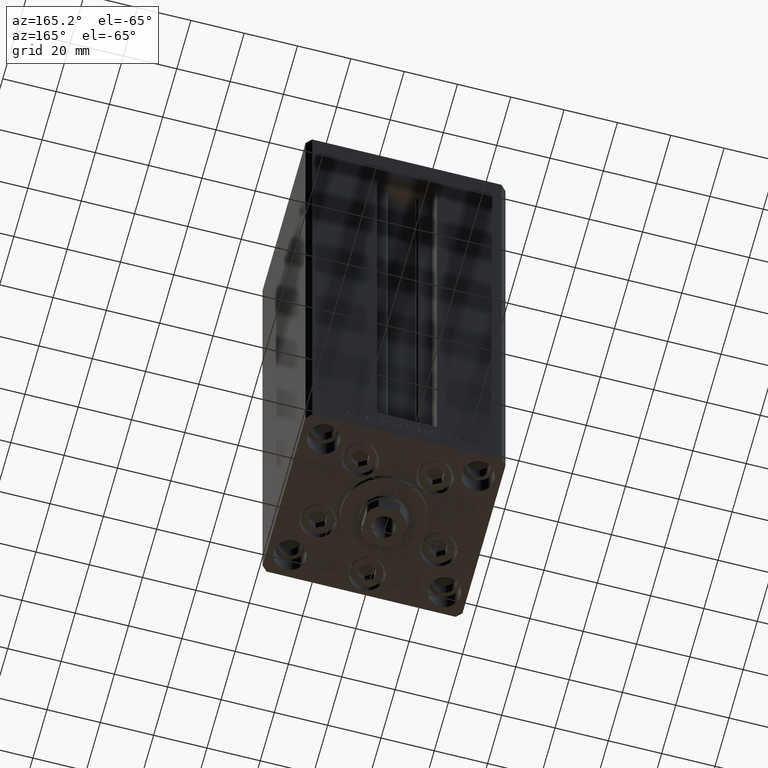
[diagram: clean part render]
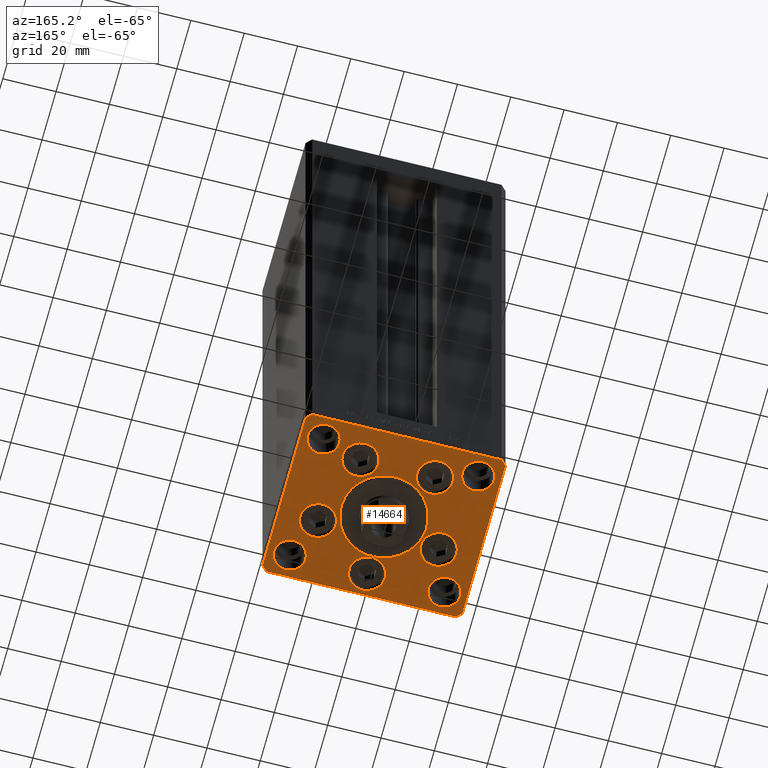
[diagram: same view with one face highlighted and labeled with its STEP entity id]
A machine part, auxiliary view. The second image highlights one B-rep face of the part: STEP entity #14664.
In plain terms, the highlighted planar face has unit normal (0, 0, -1).
Its self-contained STEP definition (entity closure, byte-faithful):
#158 = CARTESIAN_POINT ( 'NONE',  ( 35.00000000000000000, -23.99999999999999645, 0.000000000000000000 ) ) ;
#328 = AXIS2_PLACEMENT_3D ( 'NONE', #32295, #32553, #28530 ) ;
#349 = EDGE_LOOP ( 'NONE', ( #45727, #912 ) ) ;
#359 = AXIS2_PLACEMENT_3D ( 'NONE', #27060, #42394, #7972 ) ;
#662 = EDGE_LOOP ( 'NONE', ( #38102, #17805 ) ) ;
#763 = CARTESIAN_POINT ( 'NONE',  ( 35.50000000000000000, 32.49999999999999289, 0.000000000000000000 ) ) ;
#820 = CIRCLE ( 'NONE', #27321, 16.00000000000000355 ) ;
#891 = VERTEX_POINT ( 'NONE', #15450 ) ;
#912 = ORIENTED_EDGE ( 'NONE', *, *, #27814, .F. ) ;
#1052 = DIRECTION ( 'NONE',  ( 0.000000000000000000, 0.000000000000000000, 1.000000000000000000 ) ) ;
#1389 = EDGE_CURVE ( 'NONE', #13616, #34809, #44204, .T. ) ;
#1413 = EDGE_CURVE ( 'NONE', #891, #42374, #35175, .T. ) ;
#1881 = ORIENTED_EDGE ( 'NONE', *, *, #46013, .T. ) ;
#1899 = LINE ( 'NONE', #21234, #9923 ) ;
#2086 = ORIENTED_EDGE ( 'NONE', *, *, #46941, .F. ) ;
#2506 = CARTESIAN_POINT ( 'NONE',  ( 23.00000000000000711, -23.99999999999999645, 0.000000000000000000 ) ) ;
#2521 = CARTESIAN_POINT ( 'NONE',  ( 0.000000000000000000, 0.000000000000000000, 0.000000000000000000 ) ) ;
#3128 = EDGE_LOOP ( 'NONE', ( #16651, #44046, #3996, #22461, #24536, #47886, #1881, #25759 ) ) ;
#3182 = EDGE_CURVE ( 'NONE', #35137, #25379, #21013, .T. ) ;
#3477 = CARTESIAN_POINT ( 'NONE',  ( 0.000000000000000000, -24.00000000000001066, 0.000000000000000000 ) ) ;
#3603 = VECTOR ( 'NONE', #27475, 1000.000000000000000 ) ;
#3996 = ORIENTED_EDGE ( 'NONE', *, *, #12412, .T. ) ;
#4873 = LINE ( 'NONE', #9140, #3603 ) ;
#5194 = CARTESIAN_POINT ( 'NONE',  ( -23.00000000000000000, -23.99999999999999645, 0.000000000000000000 ) ) ;
#5953 = DIRECTION ( 'NONE',  ( 0.000000000000000000, 0.000000000000000000, 1.000000000000000000 ) ) ;
#6484 = DIRECTION ( 'NONE',  ( 0.000000000000000000, 0.000000000000000000, 1.000000000000000000 ) ) ;
#6500 = CIRCLE ( 'NONE', #9713, 6.749999999999997335 ) ;
#6800 = PLANE ( 'NONE',  #38911 ) ;
#6863 = CIRCLE ( 'NONE', #34933, 6.750000000001552536 ) ;
#7027 = DIRECTION ( 'NONE',  ( 0.000000000000000000, 0.000000000000000000, 1.000000000000000000 ) ) ;
#7219 = VERTEX_POINT ( 'NONE', #43739 ) ;
#7283 = VERTEX_POINT ( 'NONE', #26113 ) ;
#7287 = CARTESIAN_POINT ( 'NONE',  ( 37.50000000000000711, 30.50000000000001421, 0.000000000000000000 ) ) ;
#7332 = AXIS2_PLACEMENT_3D ( 'NONE', #48719, #6484, #47974 ) ;
#7371 = VERTEX_POINT ( 'NONE', #22087 ) ;
#7441 = AXIS2_PLACEMENT_3D ( 'NONE', #21384, #21133, #33441 ) ;
#7534 = EDGE_CURVE ( 'NONE', #7283, #43176, #13728, .T. ) ;
#7663 = LINE ( 'NONE', #41582, #41997 ) ;
#7786 = VERTEX_POINT ( 'NONE', #158 ) ;
#7972 = DIRECTION ( 'NONE',  ( 1.000000000000000000, 0.000000000000000000, 0.000000000000000000 ) ) ;
#8034 = FACE_BOUND ( 'NONE', #49671, .T. ) ;
#8140 = EDGE_CURVE ( 'NONE', #24470, #13686, #44542, .T. ) ;
#9140 = CARTESIAN_POINT ( 'NONE',  ( -35.50000000000000711, 32.49999999999997868, 0.000000000000000000 ) ) ;
#9149 = CIRCLE ( 'NONE', #328, 6.749999999999999112 ) ;
#9229 = AXIS2_PLACEMENT_3D ( 'NONE', #47289, #1052, #31710 ) ;
#9713 = AXIS2_PLACEMENT_3D ( 'NONE', #34469, #20047, #34233 ) ;
#9923 = VECTOR ( 'NONE', #25250, 1000.000000000000000 ) ;
#10008 = CARTESIAN_POINT ( 'NONE',  ( 22.62741699796953299, -8.000000000000000000, 0.000000000000000000 ) ) ;
#10392 = CIRCLE ( 'NONE', #16814, 6.000000000000001776 ) ;
#10539 = DIRECTION ( 'NONE',  ( 1.000000000000000000, 0.000000000000000000, 0.000000000000000000 ) ) ;
#10603 = AXIS2_PLACEMENT_3D ( 'NONE', #35855, #5953, #17242 ) ;
#10668 = CIRCLE ( 'NONE', #39556, 6.750000000000009770 ) ;
#10754 = CIRCLE ( 'NONE', #21969, 6.000000000000001776 ) ;
#10852 = CARTESIAN_POINT ( 'NONE',  ( -35.50000000000001421, -32.50000000000000711, 0.000000000000000000 ) ) ;
#11146 = ORIENTED_EDGE ( 'NONE', *, *, #33708, .F. ) ;
#11178 = DIRECTION ( 'NONE',  ( 0.000000000000000000, 0.000000000000000000, 1.000000000000000000 ) ) ;
#11385 = CARTESIAN_POINT ( 'NONE',  ( -29.00000000000000000, -23.99999999999999645, 0.000000000000000000 ) ) ;
#11674 = CARTESIAN_POINT ( 'NONE',  ( -35.00000000000000000, -23.99999999999999645, 0.000000000000000000 ) ) ;
#11789 = FACE_BOUND ( 'NONE', #47390, .T. ) ;
#12354 = CARTESIAN_POINT ( 'NONE',  ( -37.50000000000000000, -30.50000000000004263, 0.000000000000000000 ) ) ;
#12358 = EDGE_CURVE ( 'NONE', #32540, #43361, #9149, .T. ) ;
#12412 = EDGE_CURVE ( 'NONE', #13686, #7283, #1899, .T. ) ;
#12447 = ORIENTED_EDGE ( 'NONE', *, *, #46696, .F. ) ;
#12683 = VERTEX_POINT ( 'NONE', #20667 ) ;
#12740 = DIRECTION ( 'NONE',  ( 0.000000000000000000, 1.000000000000000000, 0.000000000000000000 ) ) ;
#13469 = CARTESIAN_POINT ( 'NONE',  ( 20.74106857963323947, 19.50000000000000000, 0.000000000000000000 ) ) ;
#13517 = CARTESIAN_POINT ( 'NONE',  ( -37.50000000000001421, 30.50000000000000000, 0.000000000000000000 ) ) ;
#13616 = VERTEX_POINT ( 'NONE', #34967 ) ;
#13686 = VERTEX_POINT ( 'NONE', #31943 ) ;
#13728 = LINE ( 'NONE', #33077, #40384 ) ;
#13743 = VERTEX_POINT ( 'NONE', #18840 ) ;
#14282 = DIRECTION ( 'NONE',  ( 1.000000000000000000, 0.000000000000000000, 0.000000000000000000 ) ) ;
#14356 = DIRECTION ( 'NONE',  ( 1.000000000000000000, 1.172770800660376149E-15, 0.000000000000000000 ) ) ;
#14402 = EDGE_CURVE ( 'NONE', #34809, #13616, #31708, .T. ) ;
#14531 = CARTESIAN_POINT ( 'NONE',  ( -29.00000000000000000, 24.00000000000000711, 0.000000000000000000 ) ) ;
#14664 = ADVANCED_FACE ( 'NONE', ( #31398, #16310, #23851, #19330, #39186, #20069, #11789, #8034, #46997, #43212, #25126 ), #6800, .T. ) ;
#14739 = ORIENTED_EDGE ( 'NONE', *, *, #14402, .F. ) ;
#15450 = CARTESIAN_POINT ( 'NONE',  ( 35.50000000000000000, 32.49999999999999289, 0.000000000000000000 ) ) ;
#15691 = DIRECTION ( 'NONE',  ( 1.000000000000000000, 0.000000000000000000, 0.000000000000000000 ) ) ;
#15834 = EDGE_CURVE ( 'NONE', #7371, #13743, #22089, .T. ) ;
#15889 = EDGE_CURVE ( 'NONE', #7219, #12683, #6863, .T. ) ;
#15898 = DIRECTION ( 'NONE',  ( 1.000000000000000000, 0.000000000000000000, 0.000000000000000000 ) ) ;
#16067 = DIRECTION ( 'NONE',  ( -1.000000000000000000, -1.954618001100627573E-16, 0.000000000000000000 ) ) ;
#16095 = VERTEX_POINT ( 'NONE', #13469 ) ;
#16310 = FACE_BOUND ( 'NONE', #42367, .T. ) ;
#16567 = CARTESIAN_POINT ( 'NONE',  ( 29.00000000000000000, 24.00000000000000355, 0.000000000000000000 ) ) ;
#16651 = ORIENTED_EDGE ( 'NONE', *, *, #44722, .T. ) ;
#16814 = AXIS2_PLACEMENT_3D ( 'NONE', #14531, #7027, #40692 ) ;
#17063 = VERTEX_POINT ( 'NONE', #25469 ) ;
#17242 = DIRECTION ( 'NONE',  ( 1.000000000000000000, 0.000000000000000000, 0.000000000000000000 ) ) ;
#17285 = DIRECTION ( 'NONE',  ( 1.000000000000000000, 0.000000000000000000, 0.000000000000000000 ) ) ;
#17559 = AXIS2_PLACEMENT_3D ( 'NONE', #33129, #48497, #14282 ) ;
#17805 = ORIENTED_EDGE ( 'NONE', *, *, #41124, .F. ) ;
#18840 = CARTESIAN_POINT ( 'NONE',  ( 15.87741699796952410, -8.000000000000000000, 0.000000000000000000 ) ) ;
#19153 = CARTESIAN_POINT ( 'NONE',  ( -35.00000000000000000, 24.00000000000000711, 0.000000000000000000 ) ) ;
#19330 = FACE_BOUND ( 'NONE', #27203, .T. ) ;
#20047 = DIRECTION ( 'NONE',  ( 0.000000000000000000, 0.000000000000000000, 1.000000000000000000 ) ) ;
#20069 = FACE_BOUND ( 'NONE', #26723, .T. ) ;
#20389 = AXIS2_PLACEMENT_3D ( 'NONE', #23460, #11178, #15691 ) ;
#20542 = VERTEX_POINT ( 'NONE', #5194 ) ;
#20561 = ORIENTED_EDGE ( 'NONE', *, *, #15889, .F. ) ;
#20572 = CARTESIAN_POINT ( 'NONE',  ( 23.00000000000000000, 24.00000000000000355, 0.000000000000000000 ) ) ;
#20667 = CARTESIAN_POINT ( 'NONE',  ( 6.750000000001552536, -24.00000000000001066, 0.000000000000000000 ) ) ;
#20784 = EDGE_CURVE ( 'NONE', #34215, #29126, #7663, .T. ) ;
#20789 = AXIS2_PLACEMENT_3D ( 'NONE', #24496, #42852, #23743 ) ;
#21013 = CIRCLE ( 'NONE', #30626, 6.000000000000001776 ) ;
#21133 = DIRECTION ( 'NONE',  ( 0.000000000000000000, 0.000000000000000000, 1.000000000000000000 ) ) ;
#21146 = VECTOR ( 'NONE', #33550, 1000.000000000000000 ) ;
#21190 = CARTESIAN_POINT ( 'NONE',  ( 16.00000000000000355, -4.979459025271462852E-15, 0.000000000000000000 ) ) ;
#21234 = CARTESIAN_POINT ( 'NONE',  ( 35.50000000000001421, -32.49999999999992184, 0.000000000000000000 ) ) ;
#21384 = CARTESIAN_POINT ( 'NONE',  ( 0.000000000000000000, -24.00000000000001066, 0.000000000000000000 ) ) ;
#21552 = DIRECTION ( 'NONE',  ( 1.000000000000000000, 0.000000000000000000, 0.000000000000000000 ) ) ;
#21844 = DIRECTION ( 'NONE',  ( -0.000000000000000000, 0.000000000000000000, 1.000000000000000000 ) ) ;
#21864 = CARTESIAN_POINT ( 'NONE',  ( 29.00000000000000000, 24.00000000000000355, 0.000000000000000000 ) ) ;
#21899 = VERTEX_POINT ( 'NONE', #44563 ) ;
#21969 = AXIS2_PLACEMENT_3D ( 'NONE', #35897, #35647, #17285 ) ;
#22087 = CARTESIAN_POINT ( 'NONE',  ( 29.37741699796954364, -8.000000000000000000, 0.000000000000000000 ) ) ;
#22089 = CIRCLE ( 'NONE', #32539, 6.750000000000009770 ) ;
#22141 = EDGE_CURVE ( 'NONE', #43176, #891, #28662, .T. ) ;
#22461 = ORIENTED_EDGE ( 'NONE', *, *, #7534, .T. ) ;
#23181 = DIRECTION ( 'NONE',  ( 1.000000000000000000, 0.000000000000000000, 0.000000000000000000 ) ) ;
#23371 = EDGE_CURVE ( 'NONE', #13743, #7371, #10668, .T. ) ;
#23460 = CARTESIAN_POINT ( 'NONE',  ( 13.99106857963324124, 19.50000000000000000, 0.000000000000000000 ) ) ;
#23500 = ORIENTED_EDGE ( 'NONE', *, *, #45462, .F. ) ;
#23743 = DIRECTION ( 'NONE',  ( 1.000000000000000000, 0.000000000000000000, 0.000000000000000000 ) ) ;
#23851 = FACE_BOUND ( 'NONE', #28770, .T. ) ;
#24054 = CIRCLE ( 'NONE', #24885, 6.000000000000001776 ) ;
#24470 = VERTEX_POINT ( 'NONE', #10852 ) ;
#24496 = CARTESIAN_POINT ( 'NONE',  ( -29.00000000000000000, -23.99999999999999645, 0.000000000000000000 ) ) ;
#24536 = ORIENTED_EDGE ( 'NONE', *, *, #22141, .T. ) ;
#24885 = AXIS2_PLACEMENT_3D ( 'NONE', #16567, #47486, #35672 ) ;
#25126 = FACE_OUTER_BOUND ( 'NONE', #3128, .T. ) ;
#25146 = DIRECTION ( 'NONE',  ( 1.000000000000000000, 0.000000000000000000, 0.000000000000000000 ) ) ;
#25155 = VECTOR ( 'NONE', #36209, 1000.000000000000000 ) ;
#25250 = DIRECTION ( 'NONE',  ( 0.7071067811865463515, 0.7071067811865487940, 0.000000000000000000 ) ) ;
#25336 = DIRECTION ( 'NONE',  ( 0.000000000000000000, 0.000000000000000000, 1.000000000000000000 ) ) ;
#25379 = VERTEX_POINT ( 'NONE', #31001 ) ;
#25469 = CARTESIAN_POINT ( 'NONE',  ( -16.00000000000000355, -6.938893903907228378E-15, 0.000000000000000000 ) ) ;
#25759 = ORIENTED_EDGE ( 'NONE', *, *, #20784, .T. ) ;
#25882 = CIRCLE ( 'NONE', #7441, 6.750000000001552536 ) ;
#25969 = VECTOR ( 'NONE', #14356, 1000.000000000000000 ) ;
#26113 = CARTESIAN_POINT ( 'NONE',  ( 37.50000000000000711, -30.49999999999992895, 0.000000000000000000 ) ) ;
#26246 = DIRECTION ( 'NONE',  ( 2.275047181608926165E-16, -1.000000000000000000, 0.000000000000000000 ) ) ;
#26408 = DIRECTION ( 'NONE',  ( 1.000000000000000000, 0.000000000000000000, 0.000000000000000000 ) ) ;
#26723 = EDGE_LOOP ( 'NONE', ( #41881, #44243 ) ) ;
#27060 = CARTESIAN_POINT ( 'NONE',  ( 29.00000000000000355, -23.99999999999999645, 0.000000000000000000 ) ) ;
#27203 = EDGE_LOOP ( 'NONE', ( #44873, #39143 ) ) ;
#27211 = CIRCLE ( 'NONE', #17559, 5.999999999999998224 ) ;
#27321 = AXIS2_PLACEMENT_3D ( 'NONE', #43158, #35608, #28066 ) ;
#27475 = DIRECTION ( 'NONE',  ( -0.7071067811865524577, -0.7071067811865426878, 0.000000000000000000 ) ) ;
#27713 = DIRECTION ( 'NONE',  ( 0.000000000000000000, 0.000000000000000000, 1.000000000000000000 ) ) ;
#27719 = EDGE_LOOP ( 'NONE', ( #12447, #34268 ) ) ;
#27814 = EDGE_CURVE ( 'NONE', #41266, #20542, #43260, .T. ) ;
#28026 = EDGE_CURVE ( 'NONE', #20542, #41266, #39270, .T. ) ;
#28066 = DIRECTION ( 'NONE',  ( 1.000000000000000000, 0.000000000000000000, 0.000000000000000000 ) ) ;
#28530 = DIRECTION ( 'NONE',  ( 1.000000000000000000, 0.000000000000000000, 0.000000000000000000 ) ) ;
#28662 = LINE ( 'NONE', #44745, #25155 ) ;
#28770 = EDGE_LOOP ( 'NONE', ( #11146, #2086 ) ) ;
#28972 = CIRCLE ( 'NONE', #7332, 6.749999999999999112 ) ;
#29126 = VERTEX_POINT ( 'NONE', #12354 ) ;
#29676 = EDGE_CURVE ( 'NONE', #39644, #7786, #27211, .T. ) ;
#29735 = CARTESIAN_POINT ( 'NONE',  ( -35.50000000000000711, 32.49999999999997868, 0.000000000000000000 ) ) ;
#30180 = CARTESIAN_POINT ( 'NONE',  ( -13.99106857963324124, 19.50000000000000000, 0.000000000000000000 ) ) ;
#30340 = EDGE_CURVE ( 'NONE', #36755, #40886, #10392, .T. ) ;
#30626 = AXIS2_PLACEMENT_3D ( 'NONE', #21864, #33182, #25146 ) ;
#30843 = CIRCLE ( 'NONE', #359, 5.999999999999998224 ) ;
#31001 = CARTESIAN_POINT ( 'NONE',  ( 35.00000000000000000, 24.00000000000000355, 0.000000000000000000 ) ) ;
#31312 = EDGE_CURVE ( 'NONE', #25379, #35137, #24054, .T. ) ;
#31398 = FACE_BOUND ( 'NONE', #662, .T. ) ;
#31708 = CIRCLE ( 'NONE', #9229, 6.750000000000000000 ) ;
#31710 = DIRECTION ( 'NONE',  ( 1.000000000000000000, 0.000000000000000000, 0.000000000000000000 ) ) ;
#31943 = CARTESIAN_POINT ( 'NONE',  ( 35.50000000000001421, -32.49999999999992184, 0.000000000000000000 ) ) ;
#32295 = CARTESIAN_POINT ( 'NONE',  ( -22.62741699796953299, -8.000000000000000000, 0.000000000000000000 ) ) ;
#32539 = AXIS2_PLACEMENT_3D ( 'NONE', #10008, #25336, #21552 ) ;
#32540 = VERTEX_POINT ( 'NONE', #48819 ) ;
#32553 = DIRECTION ( 'NONE',  ( 0.000000000000000000, 0.000000000000000000, 1.000000000000000000 ) ) ;
#32617 = CARTESIAN_POINT ( 'NONE',  ( -29.37741699796953654, -8.000000000000000000, 0.000000000000000000 ) ) ;
#33077 = CARTESIAN_POINT ( 'NONE',  ( 37.50000000000000711, -30.49999999999992895, 0.000000000000000000 ) ) ;
#33129 = CARTESIAN_POINT ( 'NONE',  ( 29.00000000000000355, -23.99999999999999645, 0.000000000000000000 ) ) ;
#33182 = DIRECTION ( 'NONE',  ( 0.000000000000000000, 0.000000000000000000, 1.000000000000000000 ) ) ;
#33441 = DIRECTION ( 'NONE',  ( 1.000000000000000000, 0.000000000000000000, 0.000000000000000000 ) ) ;
#33550 = DIRECTION ( 'NONE',  ( 0.7071067811865512365, -0.7071067811865439090, 0.000000000000000000 ) ) ;
#33708 = EDGE_CURVE ( 'NONE', #16095, #21899, #6500, .T. ) ;
#34130 = DIRECTION ( 'NONE',  ( 0.000000000000000000, 0.000000000000000000, 1.000000000000000000 ) ) ;
#34213 = EDGE_CURVE ( 'NONE', #43361, #32540, #28972, .T. ) ;
#34215 = VERTEX_POINT ( 'NONE', #13517 ) ;
#34233 = DIRECTION ( 'NONE',  ( 1.000000000000000000, 0.000000000000000000, 0.000000000000000000 ) ) ;
#34268 = ORIENTED_EDGE ( 'NONE', *, *, #29676, .F. ) ;
#34469 = CARTESIAN_POINT ( 'NONE',  ( 13.99106857963324124, 19.50000000000000000, 0.000000000000000000 ) ) ;
#34809 = VERTEX_POINT ( 'NONE', #48902 ) ;
#34933 = AXIS2_PLACEMENT_3D ( 'NONE', #3477, #34130, #49708 ) ;
#34967 = CARTESIAN_POINT ( 'NONE',  ( -7.241068579633241242, 19.50000000000000000, 0.000000000000000000 ) ) ;
#35006 = CARTESIAN_POINT ( 'NONE',  ( 22.62741699796953299, -8.000000000000000000, 0.000000000000000000 ) ) ;
#35137 = VERTEX_POINT ( 'NONE', #20572 ) ;
#35175 = LINE ( 'NONE', #763, #41002 ) ;
#35421 = EDGE_LOOP ( 'NONE', ( #40142, #20561 ) ) ;
#35608 = DIRECTION ( 'NONE',  ( 0.000000000000000000, 0.000000000000000000, 1.000000000000000000 ) ) ;
#35647 = DIRECTION ( 'NONE',  ( 0.000000000000000000, 0.000000000000000000, 1.000000000000000000 ) ) ;
#35672 = DIRECTION ( 'NONE',  ( 1.000000000000000000, 0.000000000000000000, 0.000000000000000000 ) ) ;
#35855 = CARTESIAN_POINT ( 'NONE',  ( 0.000000000000000000, -6.938893903907228378E-15, 0.000000000000000000 ) ) ;
#35897 = CARTESIAN_POINT ( 'NONE',  ( -29.00000000000000000, 24.00000000000000711, 0.000000000000000000 ) ) ;
#36209 = DIRECTION ( 'NONE',  ( -0.7071067811865524577, 0.7071067811865426878, 0.000000000000000000 ) ) ;
#36435 = EDGE_CURVE ( 'NONE', #17063, #39390, #820, .T. ) ;
#36616 = ORIENTED_EDGE ( 'NONE', *, *, #1389, .F. ) ;
#36755 = VERTEX_POINT ( 'NONE', #19153 ) ;
#38073 = CARTESIAN_POINT ( 'NONE',  ( -37.50000000000000000, -30.50000000000004263, 0.000000000000000000 ) ) ;
#38102 = ORIENTED_EDGE ( 'NONE', *, *, #36435, .F. ) ;
#38911 = AXIS2_PLACEMENT_3D ( 'NONE', #2521, #21844, #10539 ) ;
#39143 = ORIENTED_EDGE ( 'NONE', *, *, #23371, .F. ) ;
#39186 = FACE_BOUND ( 'NONE', #35421, .T. ) ;
#39270 = CIRCLE ( 'NONE', #43296, 6.000000000000001776 ) ;
#39390 = VERTEX_POINT ( 'NONE', #21190 ) ;
#39556 = AXIS2_PLACEMENT_3D ( 'NONE', #35006, #27713, #15898 ) ;
#39595 = ORIENTED_EDGE ( 'NONE', *, *, #30340, .F. ) ;
#39644 = VERTEX_POINT ( 'NONE', #2506 ) ;
#40142 = ORIENTED_EDGE ( 'NONE', *, *, #41710, .F. ) ;
#40384 = VECTOR ( 'NONE', #12740, 1000.000000000000000 ) ;
#40692 = DIRECTION ( 'NONE',  ( 1.000000000000000000, 0.000000000000000000, 0.000000000000000000 ) ) ;
#40886 = VERTEX_POINT ( 'NONE', #46670 ) ;
#41002 = VECTOR ( 'NONE', #16067, 1000.000000000000000 ) ;
#41124 = EDGE_CURVE ( 'NONE', #39390, #17063, #45919, .T. ) ;
#41266 = VERTEX_POINT ( 'NONE', #11674 ) ;
#41582 = CARTESIAN_POINT ( 'NONE',  ( -37.50000000000001421, 30.50000000000000000, 0.000000000000000000 ) ) ;
#41710 = EDGE_CURVE ( 'NONE', #12683, #7219, #25882, .T. ) ;
#41881 = ORIENTED_EDGE ( 'NONE', *, *, #12358, .F. ) ;
#41997 = VECTOR ( 'NONE', #26246, 1000.000000000000000 ) ;
#42097 = LINE ( 'NONE', #38073, #21146 ) ;
#42367 = EDGE_LOOP ( 'NONE', ( #36616, #14739 ) ) ;
#42374 = VERTEX_POINT ( 'NONE', #29735 ) ;
#42394 = DIRECTION ( 'NONE',  ( 0.000000000000000000, 0.000000000000000000, 1.000000000000000000 ) ) ;
#42852 = DIRECTION ( 'NONE',  ( 0.000000000000000000, 0.000000000000000000, 1.000000000000000000 ) ) ;
#43158 = CARTESIAN_POINT ( 'NONE',  ( 0.000000000000000000, -6.938893903907228378E-15, 0.000000000000000000 ) ) ;
#43176 = VERTEX_POINT ( 'NONE', #7287 ) ;
#43212 = FACE_BOUND ( 'NONE', #27719, .T. ) ;
#43260 = CIRCLE ( 'NONE', #20789, 6.000000000000001776 ) ;
#43296 = AXIS2_PLACEMENT_3D ( 'NONE', #11385, #45585, #23181 ) ;
#43361 = VERTEX_POINT ( 'NONE', #32617 ) ;
#43611 = ORIENTED_EDGE ( 'NONE', *, *, #3182, .F. ) ;
#43739 = CARTESIAN_POINT ( 'NONE',  ( -6.750000000001552536, -24.00000000000001066, 0.000000000000000000 ) ) ;
#44046 = ORIENTED_EDGE ( 'NONE', *, *, #8140, .T. ) ;
#44204 = CIRCLE ( 'NONE', #47434, 6.750000000000000000 ) ;
#44243 = ORIENTED_EDGE ( 'NONE', *, *, #34213, .F. ) ;
#44542 = LINE ( 'NONE', #48818, #25969 ) ;
#44563 = CARTESIAN_POINT ( 'NONE',  ( 7.241068579633242130, 19.50000000000000000, 0.000000000000000000 ) ) ;
#44722 = EDGE_CURVE ( 'NONE', #29126, #24470, #42097, .T. ) ;
#44745 = CARTESIAN_POINT ( 'NONE',  ( 37.50000000000000711, 30.50000000000001421, 0.000000000000000000 ) ) ;
#44873 = ORIENTED_EDGE ( 'NONE', *, *, #15834, .F. ) ;
#45462 = EDGE_CURVE ( 'NONE', #40886, #36755, #10754, .T. ) ;
#45519 = DIRECTION ( 'NONE',  ( 0.000000000000000000, 0.000000000000000000, 1.000000000000000000 ) ) ;
#45585 = DIRECTION ( 'NONE',  ( 0.000000000000000000, 0.000000000000000000, 1.000000000000000000 ) ) ;
#45727 = ORIENTED_EDGE ( 'NONE', *, *, #28026, .F. ) ;
#45919 = CIRCLE ( 'NONE', #10603, 16.00000000000000355 ) ;
#46013 = EDGE_CURVE ( 'NONE', #42374, #34215, #4873, .T. ) ;
#46670 = CARTESIAN_POINT ( 'NONE',  ( -23.00000000000000000, 24.00000000000000711, 0.000000000000000000 ) ) ;
#46696 = EDGE_CURVE ( 'NONE', #7786, #39644, #30843, .T. ) ;
#46941 = EDGE_CURVE ( 'NONE', #21899, #16095, #48556, .T. ) ;
#46997 = FACE_BOUND ( 'NONE', #349, .T. ) ;
#47289 = CARTESIAN_POINT ( 'NONE',  ( -13.99106857963324124, 19.50000000000000000, 0.000000000000000000 ) ) ;
#47390 = EDGE_LOOP ( 'NONE', ( #48128, #43611 ) ) ;
#47434 = AXIS2_PLACEMENT_3D ( 'NONE', #30180, #45519, #26408 ) ;
#47486 = DIRECTION ( 'NONE',  ( 0.000000000000000000, 0.000000000000000000, 1.000000000000000000 ) ) ;
#47886 = ORIENTED_EDGE ( 'NONE', *, *, #1413, .T. ) ;
#47974 = DIRECTION ( 'NONE',  ( 1.000000000000000000, 0.000000000000000000, 0.000000000000000000 ) ) ;
#48128 = ORIENTED_EDGE ( 'NONE', *, *, #31312, .F. ) ;
#48497 = DIRECTION ( 'NONE',  ( 0.000000000000000000, 0.000000000000000000, 1.000000000000000000 ) ) ;
#48556 = CIRCLE ( 'NONE', #20389, 6.749999999999997335 ) ;
#48719 = CARTESIAN_POINT ( 'NONE',  ( -22.62741699796953299, -8.000000000000000000, 0.000000000000000000 ) ) ;
#48818 = CARTESIAN_POINT ( 'NONE',  ( -35.50000000000001421, -32.50000000000000711, 0.000000000000000000 ) ) ;
#48819 = CARTESIAN_POINT ( 'NONE',  ( -15.87741699796953476, -8.000000000000000000, 0.000000000000000000 ) ) ;
#48902 = CARTESIAN_POINT ( 'NONE',  ( -20.74106857963324302, 19.50000000000000000, 0.000000000000000000 ) ) ;
#49671 = EDGE_LOOP ( 'NONE', ( #23500, #39595 ) ) ;
#49708 = DIRECTION ( 'NONE',  ( 1.000000000000000000, 0.000000000000000000, 0.000000000000000000 ) ) ;